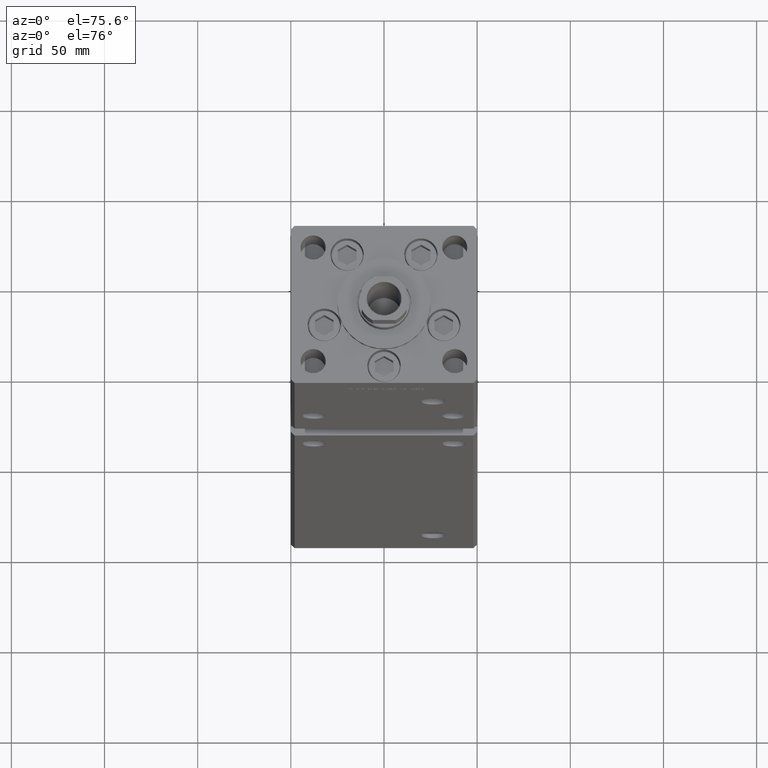
[diagram: clean part render]
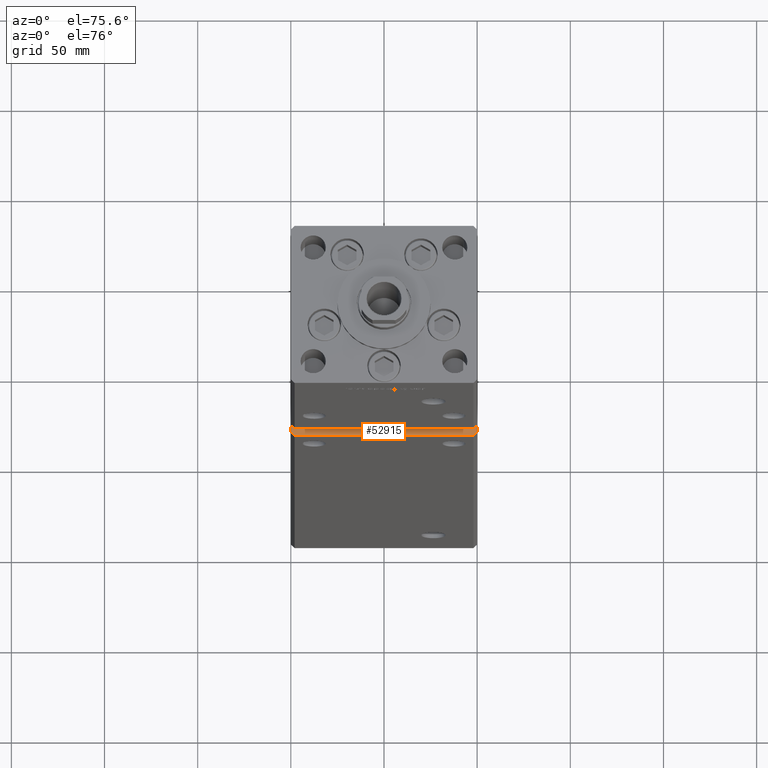
[diagram: same view with one face highlighted and labeled with its STEP entity id]
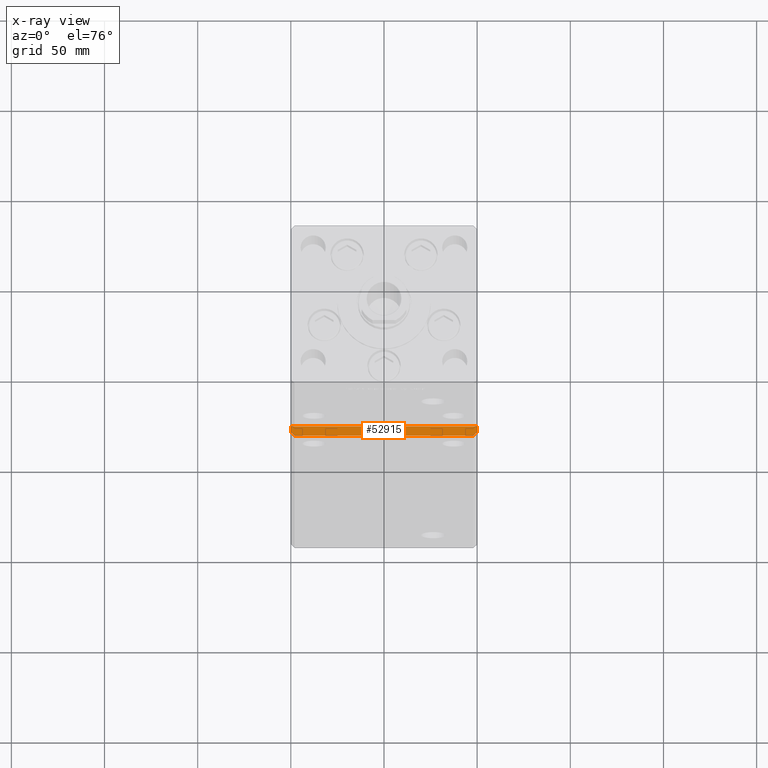
[diagram: x-ray of the same camera — body ghosted, the highlighted face saturated]
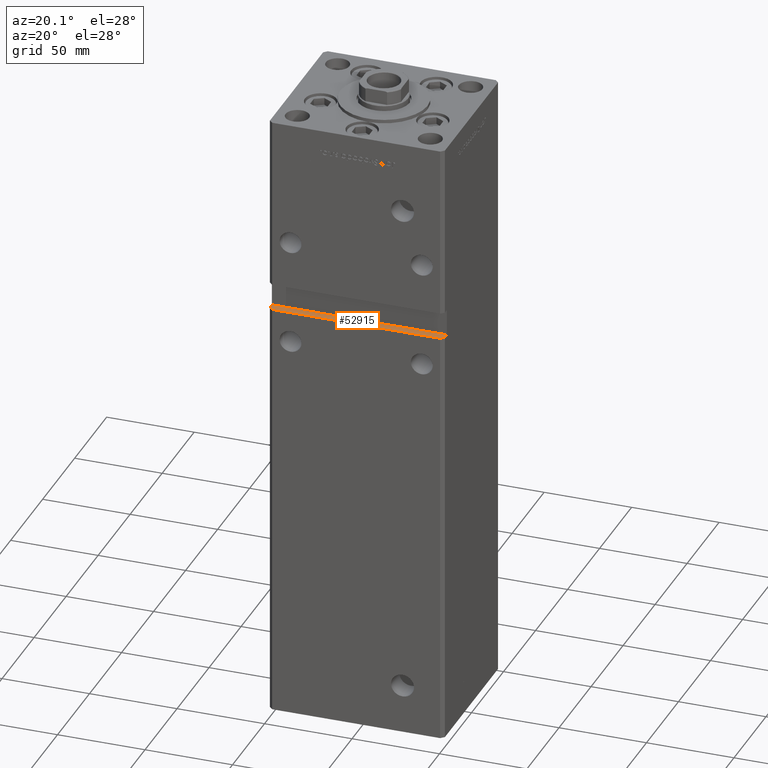
[diagram: same view with one face highlighted and labeled with its STEP entity id]
A machine part, auxiliary view. The second image highlights one B-rep face of the part: STEP entity #52915.
The next image is the same camera in x-ray: the body ghosted, the highlighted face saturated — about 0% of this face is hidden behind the body in this view.
A second angle (auxiliary view) of the same face is appended — the face is thin or edge-on in the first view.
In plain terms, the highlighted planar face has unit normal (0, 0, -1).
Its self-contained STEP definition (entity closure, byte-faithful):
#1875 = DIRECTION ( 'NONE',  ( -0.000000000000000000, -1.000000000000000000, -0.000000000000000000 ) ) ;
#2663 = FACE_OUTER_BOUND ( 'NONE', #42708, .T. ) ;
#3390 = VERTEX_POINT ( 'NONE', #26542 ) ;
#3418 = VECTOR ( 'NONE', #40793, 1000.000000000000000 ) ;
#3930 = VERTEX_POINT ( 'NONE', #49762 ) ;
#7761 = LINE ( 'NONE', #24162, #21012 ) ;
#9067 = AXIS2_PLACEMENT_3D ( 'NONE', #35205, #31160, #39748 ) ;
#9132 = EDGE_CURVE ( 'NONE', #3390, #20731, #44364, .T. ) ;
#10513 = EDGE_CURVE ( 'NONE', #3930, #45656, #25151, .T. ) ;
#12022 = EDGE_CURVE ( 'NONE', #3930, #3390, #25546, .T. ) ;
#12116 = DIRECTION ( 'NONE',  ( 0.7071067811865474617, 0.7071067811865474617, 0.000000000000000000 ) ) ;
#15035 = PLANE ( 'NONE',  #9067 ) ;
#16018 = VECTOR ( 'NONE', #12116, 1000.000000000000114 ) ;
#18588 = VERTEX_POINT ( 'NONE', #37538 ) ;
#20731 = VERTEX_POINT ( 'NONE', #34177 ) ;
#20887 = ORIENTED_EDGE ( 'NONE', *, *, #10513, .F. ) ;
#21012 = VECTOR ( 'NONE', #31945, 1000.000000000000000 ) ;
#21912 = ORIENTED_EDGE ( 'NONE', *, *, #12022, .T. ) ;
#24162 = CARTESIAN_POINT ( 'NONE',  ( -49.99999999999998579, -38.50000000000000000, 224.0000000000000000 ) ) ;
#25151 = LINE ( 'NONE', #37770, #46963 ) ;
#25546 = LINE ( 'NONE', #26053, #52979 ) ;
#26053 = CARTESIAN_POINT ( 'NONE',  ( -49.99999999999998579, -43.50000000000000000, 224.0000000000000000 ) ) ;
#26096 = LINE ( 'NONE', #42218, #32706 ) ;
#26140 = CARTESIAN_POINT ( 'NONE',  ( 49.99999999999998579, -38.49999999999999289, 224.0000000000000000 ) ) ;
#26542 = CARTESIAN_POINT ( 'NONE',  ( 47.99999999999998579, -43.50000000000000000, 224.0000000000000000 ) ) ;
#28697 = CARTESIAN_POINT ( 'NONE',  ( -49.99999999999998579, -41.49999999999999289, 224.0000000000000000 ) ) ;
#29236 = CARTESIAN_POINT ( 'NONE',  ( -49.99999999999998579, -38.50000000000000000, 224.0000000000000000 ) ) ;
#31160 = DIRECTION ( 'NONE',  ( 0.000000000000000000, 0.000000000000000000, -1.000000000000000000 ) ) ;
#31483 = ORIENTED_EDGE ( 'NONE', *, *, #9132, .T. ) ;
#31945 = DIRECTION ( 'NONE',  ( 1.000000000000000000, 0.000000000000000000, 0.000000000000000000 ) ) ;
#32706 = VECTOR ( 'NONE', #1875, 1000.000000000000000 ) ;
#34177 = CARTESIAN_POINT ( 'NONE',  ( 49.99999999999999289, -41.49999999999999289, 224.0000000000000000 ) ) ;
#35205 = CARTESIAN_POINT ( 'NONE',  ( -49.99999999999998579, -38.50000000000000000, 224.0000000000000000 ) ) ;
#37034 = LINE ( 'NONE', #29236, #3418 ) ;
#37538 = CARTESIAN_POINT ( 'NONE',  ( -49.99999999999998579, -38.50000000000000000, 224.0000000000000000 ) ) ;
#37770 = CARTESIAN_POINT ( 'NONE',  ( -49.99999999999998579, -41.49999999999999289, 224.0000000000000000 ) ) ;
#38024 = DIRECTION ( 'NONE',  ( -0.7071067811865474617, 0.7071067811865474617, 0.000000000000000000 ) ) ;
#39748 = DIRECTION ( 'NONE',  ( -1.000000000000000000, 0.000000000000000000, -0.000000000000000000 ) ) ;
#40793 = DIRECTION ( 'NONE',  ( -0.000000000000000000, -1.000000000000000000, -0.000000000000000000 ) ) ;
#41157 = EDGE_CURVE ( 'NONE', #18588, #45656, #37034, .T. ) ;
#41927 = DIRECTION ( 'NONE',  ( 1.000000000000000000, 0.000000000000000000, 0.000000000000000000 ) ) ;
#42218 = CARTESIAN_POINT ( 'NONE',  ( 49.99999999999999289, -38.50000000000000000, 224.0000000000000000 ) ) ;
#42708 = EDGE_LOOP ( 'NONE', ( #21912, #31483, #44976, #46620, #46115, #20887 ) ) ;
#43308 = VERTEX_POINT ( 'NONE', #26140 ) ;
#43643 = EDGE_CURVE ( 'NONE', #43308, #20731, #26096, .T. ) ;
#44364 = LINE ( 'NONE', #48657, #16018 ) ;
#44976 = ORIENTED_EDGE ( 'NONE', *, *, #43643, .F. ) ;
#45656 = VERTEX_POINT ( 'NONE', #28697 ) ;
#46115 = ORIENTED_EDGE ( 'NONE', *, *, #41157, .T. ) ;
#46620 = ORIENTED_EDGE ( 'NONE', *, *, #47893, .F. ) ;
#46963 = VECTOR ( 'NONE', #38024, 1000.000000000000114 ) ;
#47893 = EDGE_CURVE ( 'NONE', #18588, #43308, #7761, .T. ) ;
#48657 = CARTESIAN_POINT ( 'NONE',  ( 49.99999999999998579, -41.49999999999999289, 224.0000000000000000 ) ) ;
#49762 = CARTESIAN_POINT ( 'NONE',  ( -47.99999999999998579, -43.50000000000000000, 224.0000000000000000 ) ) ;
#52915 = ADVANCED_FACE ( 'NONE', ( #2663 ), #15035, .F. ) ;
#52979 = VECTOR ( 'NONE', #41927, 1000.000000000000000 ) ;